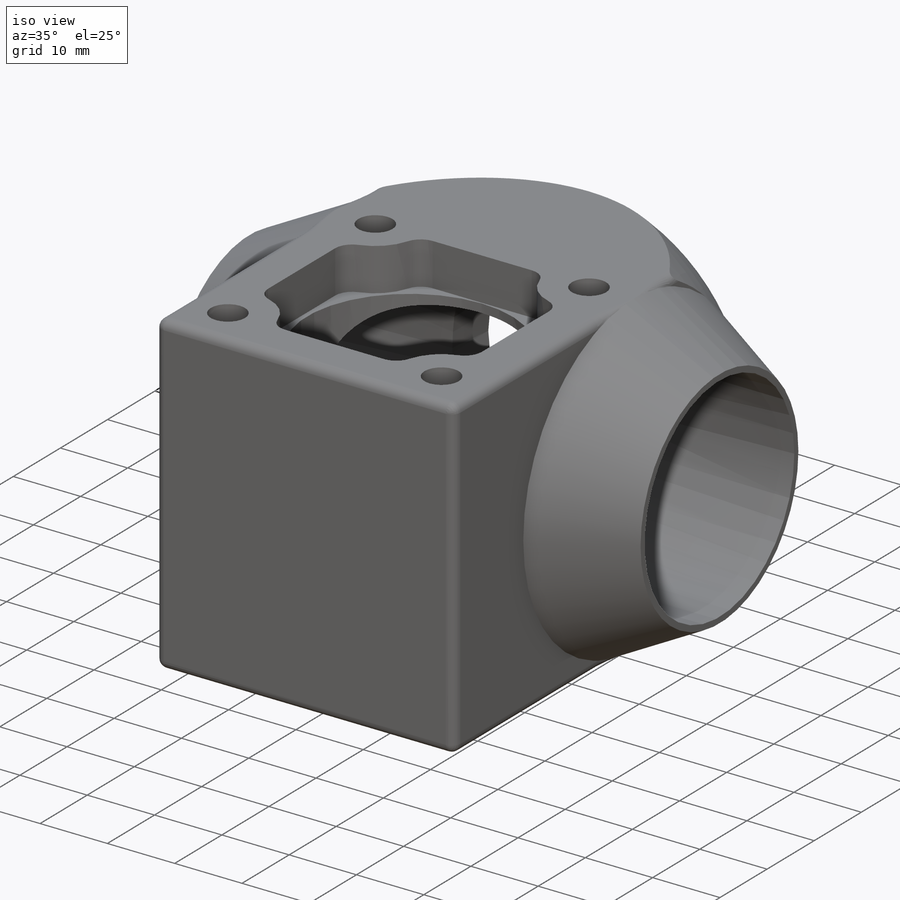
[diagram: iso view]
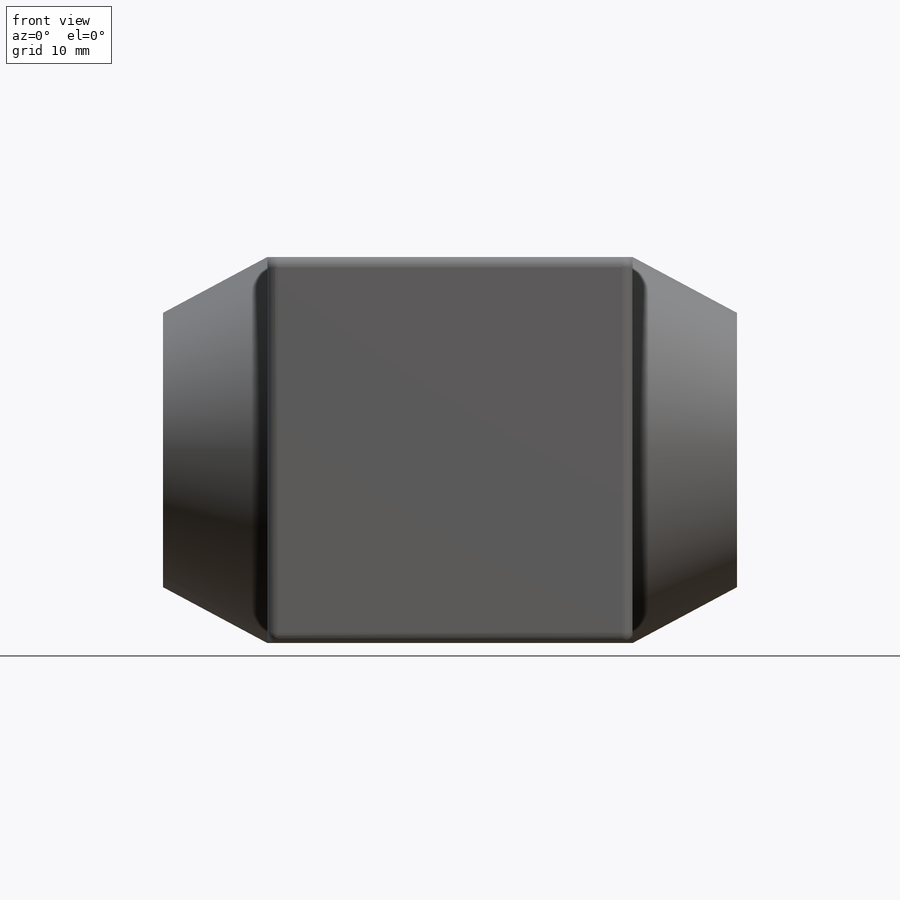
[diagram: front view]
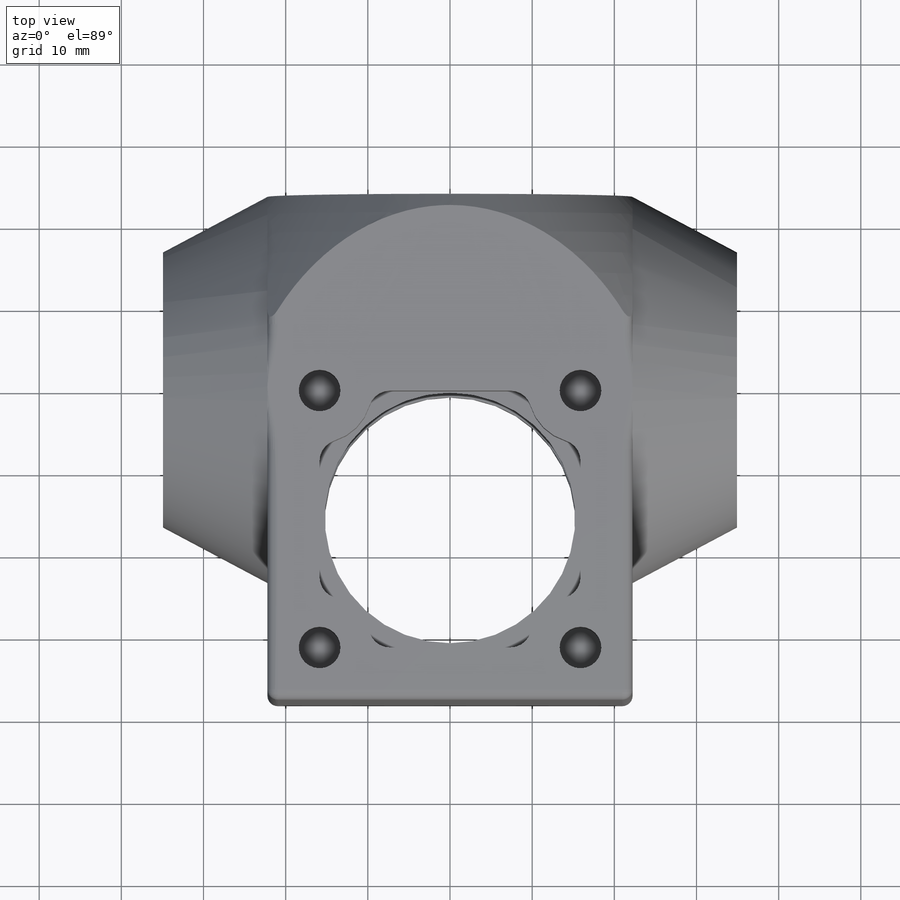
[diagram: top view]
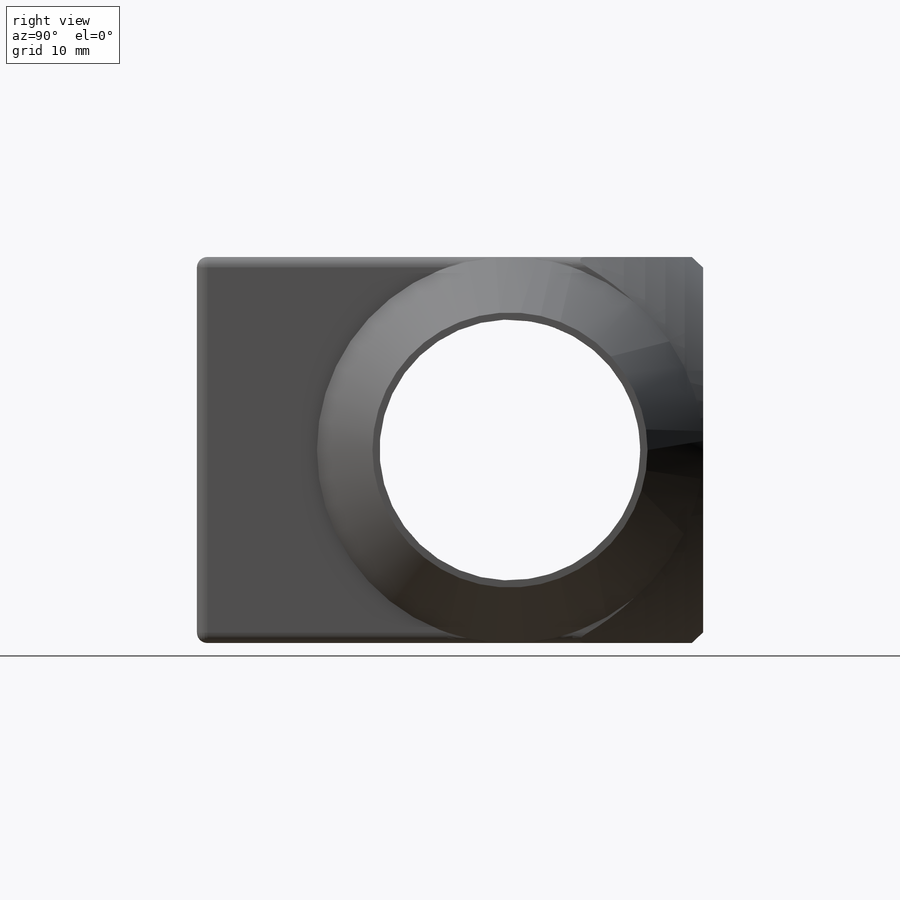
[diagram: right view]
SOLIDWORKS PART (.sldprt)
format: sldprt  version: not decoded by parser v0  size: 1,479,680 bytes
history: native  units: mm
features: sketch x9, cut_extrude x4, extrude x2, mirror x2, material x1, cut_revolve x1, fillet x1 (+11 scaffold rows collapsed)
feature tree (31):
  scaffold x11  (default folders/planes/origin — collapsed)
  material  "6061 Alloy"
  sketch  "Sketch2"  dims[c1.D1=15.875mm c1.D2=38.1mm c1.D3=~23.50262mm c1.D4=23.495mm c1.D5=23.495mm c2.D1=38.1mm c2.D2=~23.50262mm]
  extrude  "Boss-Extrude1"  Depth=44.45mm
  sketch  "Sketch3"  dims[c1.D5=45.72mm c1.D1=46.99mm c2.D1=~2.039052deg c3.D1=33.02mm c3.D2=35.56mm c3.D3=2.54mm c3.D4=5.08mm]
  cut_revolve  "Cut-Revolve3"  Angle=360deg
  sketch  "Sketch5"
  extrude  "Boss-Extrude2"  Depth=12.7mm
  mirror  "Mirror1"
  sketch  "Sketch6"  dims[D1=31.75mm]
  cut_extrude  "Cut-Extrude1"  [1 undecoded]
  sketch  "Sketch7"
  sketch  "Sketch Picture3"  dims[D1=31.75mm]
  cut_extrude  "Cut-Extrude2"  [1 undecoded]
  sketch  "Sketch8"
  sketch  "Sketch Picture5"  dims[D1=12.7mm D3=2.54mm D4=2.54mm D5=2.54mm D6=2.54mm D7=2.54mm D8=2.54mm D9=2.54mm D10=2.54mm D11=5.08mm D2=~15.639419mm]
  cut_extrude  "Cut-Extrude3"  Depth=6.35mm
  mirror  "Mirror2"
  sketch  "Sketch9"  dims[D2=30.48mm D1=15.875mm]
  cut_extrude  "Cut-Extrude4"  [1 undecoded]
  fillet  "Fillet1"  Radius=1.27mm
decode coverage: 11 of 19 modeling features carry decoded parameters
note: ~ marks probable driven/reference dimensions
note: 3 parameter values undecoded
summary: no parameter record found for 3 features
note: suppression state not decoded; provenance and decode notes live in map.json
